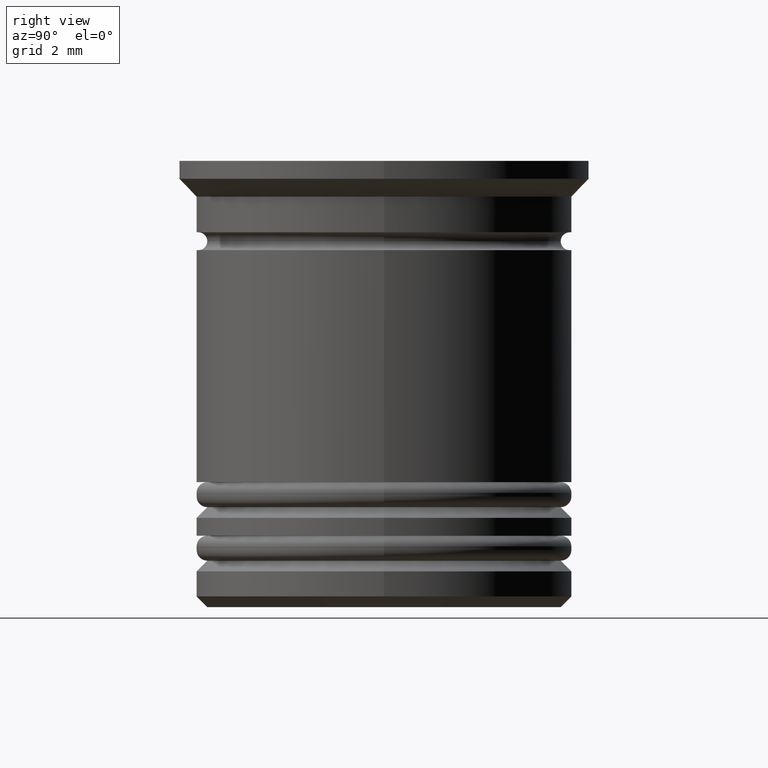
[diagram: clean part render]
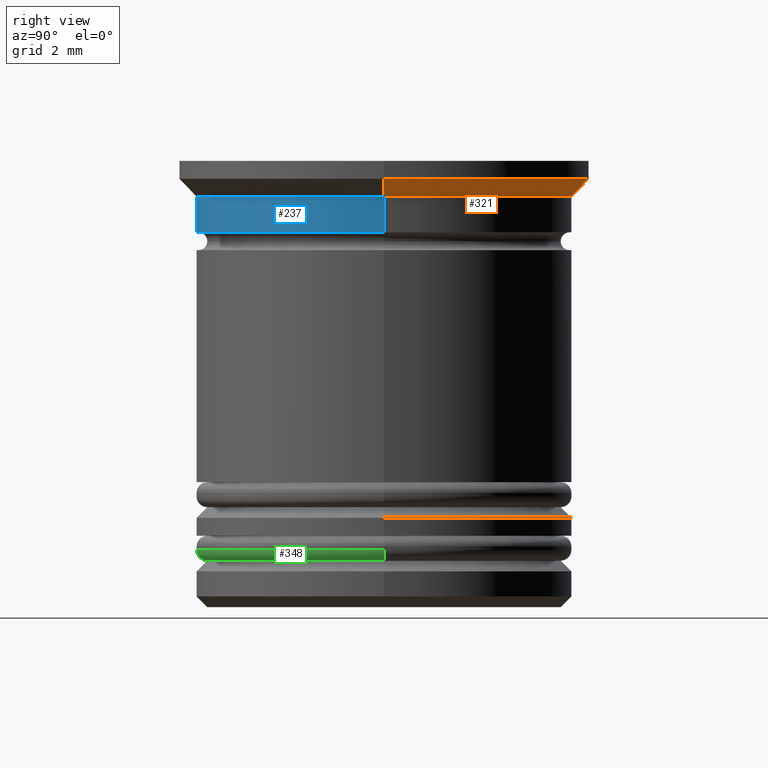
[diagram: same view with three faces highlighted in distinct colors, each labeled with its STEP entity id]
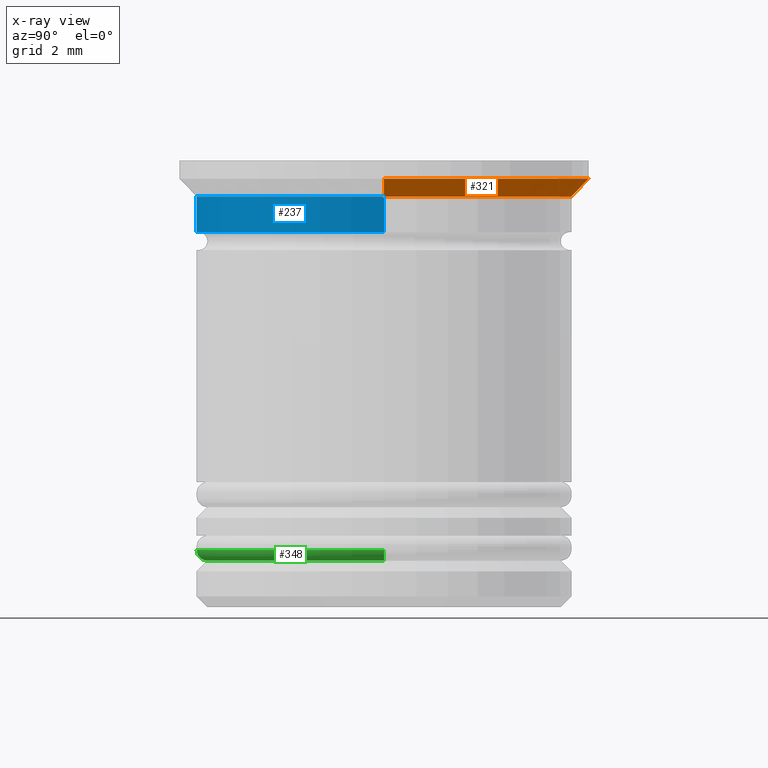
[diagram: x-ray of the same camera — body ghosted, the three highlighted faces saturated]
A machine part, right view with three faces highlighted in distinct colors.
The next image is the same camera in x-ray (body ghosted, the three faces saturated) — at least one of them is partly hidden behind the body in this view.
Their STEP definitions:

[orange] entity #321 — the highlighted conical surface has half-angle 45 deg.
#39 = VECTOR ( 'NONE', #585, 1000.000000000000000 ) ;
#321 = ADVANCED_FACE ( 'NONE', ( #1007 ), #1132, .T. ) ;
#385 = EDGE_CURVE ( 'NONE', #1143, #1774, #1482, .T. ) ;
#387 = EDGE_LOOP ( 'NONE', ( #1301, #389, #1267, #482 ) ) ;
#389 = ORIENTED_EDGE ( 'NONE', *, *, #385, .T. ) ;
#429 = CARTESIAN_POINT ( 'NONE',  ( 5.750000000000000000, 0.000000000000000000, -0.4999999999999982792 ) ) ;
#466 = CARTESIAN_POINT ( 'NONE',  ( 0.000000000000000000, 0.000000000000000000, -0.4999999999999982792 ) ) ;
#482 = ORIENTED_EDGE ( 'NONE', *, *, #921, .F. ) ;
#585 = DIRECTION ( 'NONE',  ( 0.7071067811865493491, 0.000000000000000000, 0.7071067811865456854 ) ) ;
#587 = DIRECTION ( 'NONE',  ( 1.000000000000000000, 0.000000000000000000, 0.000000000000000000 ) ) ;
#613 = VERTEX_POINT ( 'NONE', #1506 ) ;
#628 = DIRECTION ( 'NONE',  ( -0.000000000000000000, -0.000000000000000000, 1.000000000000000000 ) ) ;
#687 = EDGE_CURVE ( 'NONE', #862, #1774, #940, .T. ) ;
#712 = DIRECTION ( 'NONE',  ( 1.000000000000000000, 0.000000000000000000, 0.000000000000000000 ) ) ;
#862 = VERTEX_POINT ( 'NONE', #429 ) ;
#886 = LINE ( 'NONE', #1956, #39 ) ;
#921 = EDGE_CURVE ( 'NONE', #613, #862, #886, .T. ) ;
#926 = DIRECTION ( 'NONE',  ( -1.000000000000000000, 0.000000000000000000, 0.000000000000000000 ) ) ;
#940 = CIRCLE ( 'NONE', #1813, 5.750000000000000000 ) ;
#1007 = FACE_OUTER_BOUND ( 'NONE', #387, .T. ) ;
#1132 = CONICAL_SURFACE ( 'NONE', #1812, 5.750000000000000000, 0.7853981633974509435 ) ;
#1143 = VERTEX_POINT ( 'NONE', #1648 ) ;
#1148 = DIRECTION ( 'NONE',  ( -0.7071067811865493491, 8.659560562354955045E-17, 0.7071067811865456854 ) ) ;
#1169 = DIRECTION ( 'NONE',  ( -0.000000000000000000, -0.000000000000000000, 1.000000000000000000 ) ) ;
#1204 = CIRCLE ( 'NONE', #1425, 5.249999999999999112 ) ;
#1267 = ORIENTED_EDGE ( 'NONE', *, *, #687, .F. ) ;
#1286 = CARTESIAN_POINT ( 'NONE',  ( 0.000000000000000000, 0.000000000000000000, -0.4999999999999982792 ) ) ;
#1301 = ORIENTED_EDGE ( 'NONE', *, *, #1946, .T. ) ;
#1346 = CARTESIAN_POINT ( 'NONE',  ( 0.000000000000000000, 0.000000000000000000, -0.9999999999999997780 ) ) ;
#1390 = CARTESIAN_POINT ( 'NONE',  ( -5.750000000000000000, 7.041719095097280880E-16, -0.4999999999999982792 ) ) ;
#1425 = AXIS2_PLACEMENT_3D ( 'NONE', #1346, #1958, #587 ) ;
#1482 = LINE ( 'NONE', #1632, #1491 ) ;
#1491 = VECTOR ( 'NONE', #1148, 1000.000000000000000 ) ;
#1506 = CARTESIAN_POINT ( 'NONE',  ( 5.249999999999999112, 0.000000000000000000, -0.9999999999999997780 ) ) ;
#1632 = CARTESIAN_POINT ( 'NONE',  ( -5.750000000000000000, 7.041719095097280880E-16, -0.4999999999999982792 ) ) ;
#1648 = CARTESIAN_POINT ( 'NONE',  ( -5.249999999999999112, 6.429395695523603167E-16, -0.9999999999999997780 ) ) ;
#1774 = VERTEX_POINT ( 'NONE', #1390 ) ;
#1812 = AXIS2_PLACEMENT_3D ( 'NONE', #1286, #1169, #712 ) ;
#1813 = AXIS2_PLACEMENT_3D ( 'NONE', #466, #628, #926 ) ;
#1946 = EDGE_CURVE ( 'NONE', #613, #1143, #1204, .T. ) ;
#1956 = CARTESIAN_POINT ( 'NONE',  ( 5.750000000000000000, 0.000000000000000000, -0.4999999999999982792 ) ) ;
#1958 = DIRECTION ( 'NONE',  ( -0.000000000000000000, -0.000000000000000000, 1.000000000000000000 ) ) ;

[blue] entity #237 — the highlighted cylindrical surface (partial cylindrical patch) has radius 5.25 mm, axis along (-0, -0, 1).
#92 = ORIENTED_EDGE ( 'NONE', *, *, #1019, .F. ) ;
#161 = CARTESIAN_POINT ( 'NONE',  ( 0.000000000000000000, 0.000000000000000000, 0.000000000000000000 ) ) ;
#163 = DIRECTION ( 'NONE',  ( 1.000000000000000000, 0.000000000000000000, 0.000000000000000000 ) ) ;
#199 = EDGE_CURVE ( 'NONE', #1667, #1143, #930, .T. ) ;
#237 = ADVANCED_FACE ( 'NONE', ( #470 ), #1728, .T. ) ;
#244 = LINE ( 'NONE', #1641, #337 ) ;
#256 = EDGE_LOOP ( 'NONE', ( #1135, #1546, #1753, #92 ) ) ;
#277 = DIRECTION ( 'NONE',  ( 1.000000000000000000, 0.000000000000000000, 0.000000000000000000 ) ) ;
#332 = AXIS2_PLACEMENT_3D ( 'NONE', #161, #1272, #1543 ) ;
#335 = AXIS2_PLACEMENT_3D ( 'NONE', #1988, #483, #163 ) ;
#337 = VECTOR ( 'NONE', #377, 1000.000000000000000 ) ;
#377 = DIRECTION ( 'NONE',  ( -0.000000000000000000, -0.000000000000000000, 1.000000000000000000 ) ) ;
#424 = VECTOR ( 'NONE', #1119, 1000.000000000000000 ) ;
#470 = FACE_OUTER_BOUND ( 'NONE', #256, .T. ) ;
#483 = DIRECTION ( 'NONE',  ( -0.000000000000000000, -0.000000000000000000, 1.000000000000000000 ) ) ;
#583 = EDGE_CURVE ( 'NONE', #1667, #1585, #1746, .T. ) ;
#613 = VERTEX_POINT ( 'NONE', #1506 ) ;
#923 = CARTESIAN_POINT ( 'NONE',  ( 5.249999999999999112, 0.000000000000000000, -2.000000000000000888 ) ) ;
#930 = LINE ( 'NONE', #1847, #424 ) ;
#1019 = EDGE_CURVE ( 'NONE', #1143, #613, #1137, .T. ) ;
#1119 = DIRECTION ( 'NONE',  ( -0.000000000000000000, -0.000000000000000000, 1.000000000000000000 ) ) ;
#1135 = ORIENTED_EDGE ( 'NONE', *, *, #199, .F. ) ;
#1137 = CIRCLE ( 'NONE', #335, 5.249999999999999112 ) ;
#1143 = VERTEX_POINT ( 'NONE', #1648 ) ;
#1203 = CARTESIAN_POINT ( 'NONE',  ( -5.249999999999999112, 6.429395695523603167E-16, -2.000000000000000888 ) ) ;
#1272 = DIRECTION ( 'NONE',  ( -0.000000000000000000, -0.000000000000000000, 1.000000000000000000 ) ) ;
#1387 = AXIS2_PLACEMENT_3D ( 'NONE', #1833, #1661, #277 ) ;
#1481 = EDGE_CURVE ( 'NONE', #1585, #613, #244, .T. ) ;
#1506 = CARTESIAN_POINT ( 'NONE',  ( 5.249999999999999112, 0.000000000000000000, -0.9999999999999997780 ) ) ;
#1543 = DIRECTION ( 'NONE',  ( 1.000000000000000000, 0.000000000000000000, 0.000000000000000000 ) ) ;
#1546 = ORIENTED_EDGE ( 'NONE', *, *, #583, .T. ) ;
#1585 = VERTEX_POINT ( 'NONE', #923 ) ;
#1641 = CARTESIAN_POINT ( 'NONE',  ( 5.249999999999999112, 0.000000000000000000, 0.000000000000000000 ) ) ;
#1648 = CARTESIAN_POINT ( 'NONE',  ( -5.249999999999999112, 6.429395695523603167E-16, -0.9999999999999997780 ) ) ;
#1661 = DIRECTION ( 'NONE',  ( -0.000000000000000000, -0.000000000000000000, 1.000000000000000000 ) ) ;
#1667 = VERTEX_POINT ( 'NONE', #1203 ) ;
#1728 = CYLINDRICAL_SURFACE ( 'NONE', #332, 5.249999999999999112 ) ;
#1746 = CIRCLE ( 'NONE', #1387, 5.249999999999999112 ) ;
#1753 = ORIENTED_EDGE ( 'NONE', *, *, #1481, .T. ) ;
#1833 = CARTESIAN_POINT ( 'NONE',  ( 0.000000000000000000, 0.000000000000000000, -2.000000000000000888 ) ) ;
#1847 = CARTESIAN_POINT ( 'NONE',  ( -5.249999999999999112, 6.429395695523603167E-16, 0.000000000000000000 ) ) ;
#1988 = CARTESIAN_POINT ( 'NONE',  ( 0.000000000000000000, 0.000000000000000000, -0.9999999999999997780 ) ) ;

[green] entity #348 — the highlighted toroidal blend (fillet) surface has major radius 4.95 mm and minor (blend) radius 0.3 mm.
#47 = CIRCLE ( 'NONE', #1463, 0.2999999999999999334 ) ;
#87 = FACE_OUTER_BOUND ( 'NONE', #349, .T. ) ;
#182 = CARTESIAN_POINT ( 'NONE',  ( 4.950000000000001066, 0.000000000000000000, -11.20000000000000995 ) ) ;
#273 = AXIS2_PLACEMENT_3D ( 'NONE', #341, #1239, #1261 ) ;
#304 = CIRCLE ( 'NONE', #273, 0.2999999999999999334 ) ;
#339 = CARTESIAN_POINT ( 'NONE',  ( 4.950000000000001066, 0.000000000000000000, -10.90000000000001101 ) ) ;
#341 = CARTESIAN_POINT ( 'NONE',  ( -4.950000000000001066, 6.062001655779399497E-16, -10.90000000000001101 ) ) ;
#348 = ADVANCED_FACE ( 'NONE', ( #87 ), #1682, .T. ) ;
#349 = EDGE_LOOP ( 'NONE', ( #1709, #1385, #1240, #454 ) ) ;
#365 = EDGE_CURVE ( 'NONE', #1826, #870, #780, .T. ) ;
#369 = DIRECTION ( 'NONE',  ( 1.000000000000000000, 0.000000000000000000, 0.000000000000000000 ) ) ;
#403 = CARTESIAN_POINT ( 'NONE',  ( 0.000000000000000000, 0.000000000000000000, -11.20000000000000995 ) ) ;
#454 = ORIENTED_EDGE ( 'NONE', *, *, #1759, .F. ) ;
#514 = CARTESIAN_POINT ( 'NONE',  ( 5.250000000000000888, 0.000000000000000000, -10.90000000000001101 ) ) ;
#619 = AXIS2_PLACEMENT_3D ( 'NONE', #403, #1016, #1599 ) ;
#696 = AXIS2_PLACEMENT_3D ( 'NONE', #1727, #1237, #1696 ) ;
#780 = CIRCLE ( 'NONE', #619, 4.950000000000001066 ) ;
#861 = VERTEX_POINT ( 'NONE', #514 ) ;
#870 = VERTEX_POINT ( 'NONE', #1659 ) ;
#949 = DIRECTION ( 'NONE',  ( 0.000000000000000000, -1.000000000000000000, 0.000000000000000000 ) ) ;
#1001 = VERTEX_POINT ( 'NONE', #1085 ) ;
#1016 = DIRECTION ( 'NONE',  ( -0.000000000000000000, -0.000000000000000000, -1.000000000000000000 ) ) ;
#1085 = CARTESIAN_POINT ( 'NONE',  ( -5.250000000000000888, 6.429395695523604153E-16, -10.90000000000001101 ) ) ;
#1237 = DIRECTION ( 'NONE',  ( 0.000000000000000000, 0.000000000000000000, 1.000000000000000000 ) ) ;
#1239 = DIRECTION ( 'NONE',  ( 1.224646799147353207E-16, 1.000000000000000000, -0.000000000000000000 ) ) ;
#1240 = ORIENTED_EDGE ( 'NONE', *, *, #1819, .T. ) ;
#1261 = DIRECTION ( 'NONE',  ( -1.000000000000000000, 1.224646799147353207E-16, 0.000000000000000000 ) ) ;
#1366 = CIRCLE ( 'NONE', #696, 5.250000000000000888 ) ;
#1385 = ORIENTED_EDGE ( 'NONE', *, *, #365, .F. ) ;
#1389 = EDGE_CURVE ( 'NONE', #870, #1001, #304, .T. ) ;
#1454 = AXIS2_PLACEMENT_3D ( 'NONE', #1592, #1791, #369 ) ;
#1463 = AXIS2_PLACEMENT_3D ( 'NONE', #339, #949, #1564 ) ;
#1564 = DIRECTION ( 'NONE',  ( 0.000000000000000000, 0.000000000000000000, -1.000000000000000000 ) ) ;
#1592 = CARTESIAN_POINT ( 'NONE',  ( 0.000000000000000000, 0.000000000000000000, -10.90000000000001101 ) ) ;
#1599 = DIRECTION ( 'NONE',  ( 1.000000000000000000, 0.000000000000000000, 0.000000000000000000 ) ) ;
#1659 = CARTESIAN_POINT ( 'NONE',  ( -4.950000000000001066, 6.245698675651502811E-16, -11.20000000000000995 ) ) ;
#1682 = TOROIDAL_SURFACE ( 'NONE', #1454, 4.950000000000001066, 0.2999999999999999889 ) ;
#1696 = DIRECTION ( 'NONE',  ( 1.000000000000000000, 0.000000000000000000, 0.000000000000000000 ) ) ;
#1709 = ORIENTED_EDGE ( 'NONE', *, *, #1389, .F. ) ;
#1727 = CARTESIAN_POINT ( 'NONE',  ( 0.000000000000000000, 0.000000000000000000, -10.90000000000001101 ) ) ;
#1759 = EDGE_CURVE ( 'NONE', #1001, #861, #1366, .T. ) ;
#1791 = DIRECTION ( 'NONE',  ( 0.000000000000000000, 0.000000000000000000, 1.000000000000000000 ) ) ;
#1819 = EDGE_CURVE ( 'NONE', #1826, #861, #47, .T. ) ;
#1826 = VERTEX_POINT ( 'NONE', #182 ) ;